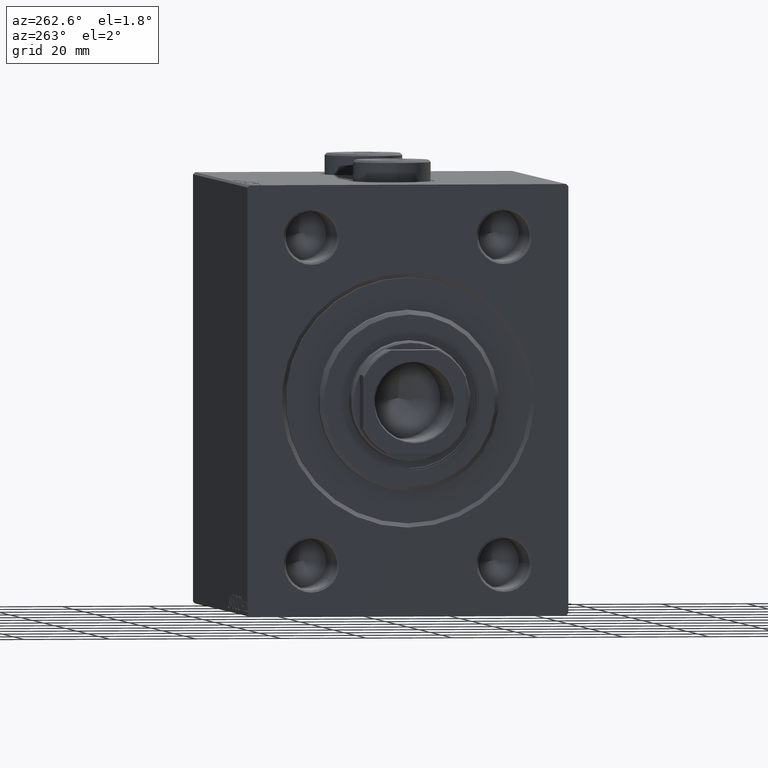
[diagram: clean part render]
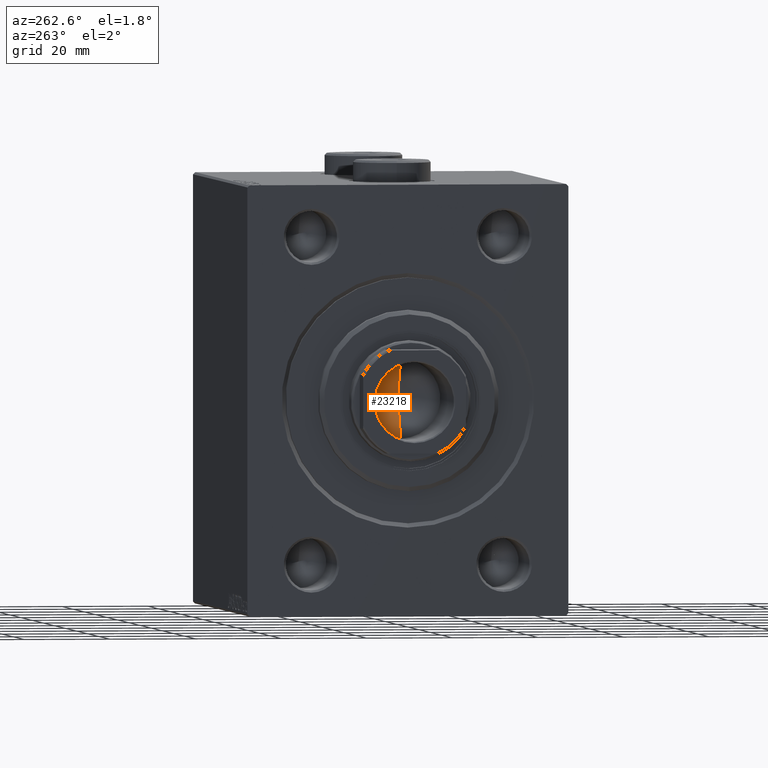
[diagram: same view with one face highlighted and labeled with its STEP entity id]
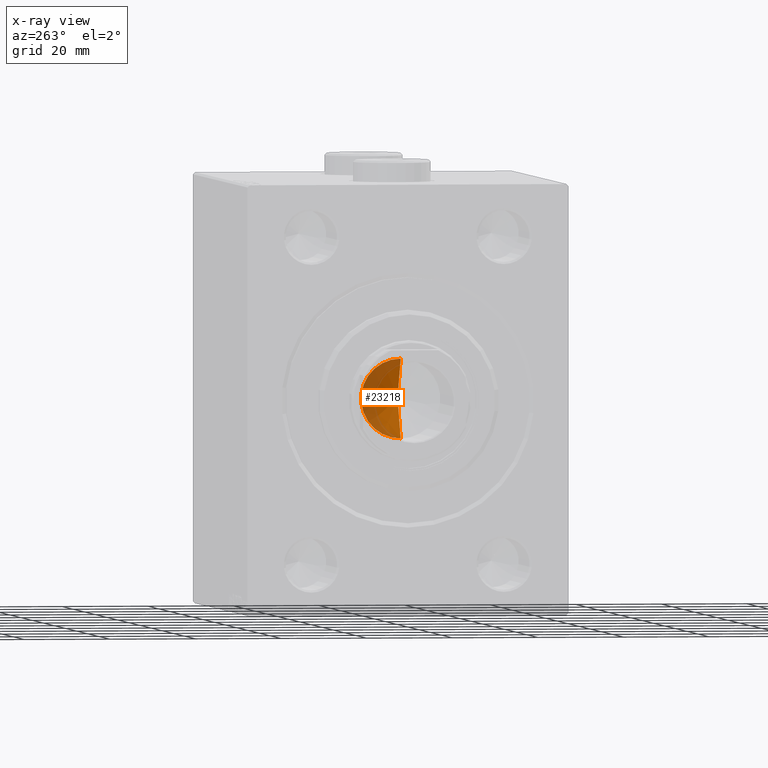
[diagram: x-ray of the same camera — body ghosted, the highlighted face saturated]
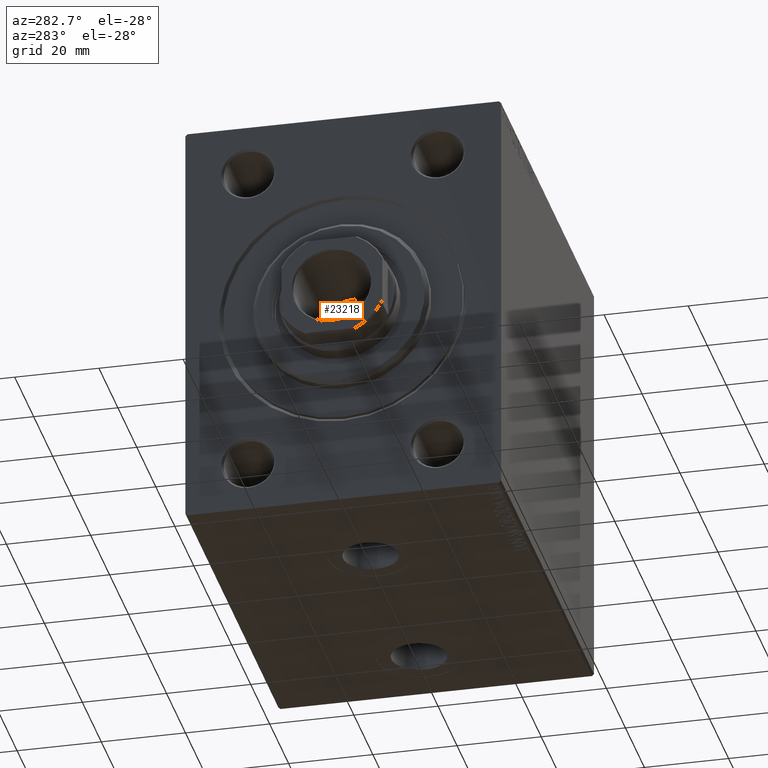
[diagram: same view with one face highlighted and labeled with its STEP entity id]
A machine part, auxiliary view. The second image highlights one B-rep face of the part: STEP entity #23218.
The next image is the same camera in x-ray: the body ghosted, the highlighted face saturated — about 46% of this face is hidden behind the body in this view.
A second angle (auxiliary view) of the same face is appended — the face is thin or edge-on in the first view.
In plain terms, the highlighted conical surface has half-angle 59 deg.
Its self-contained STEP definition (entity closure, byte-faithful):
#236 = DIRECTION ( 'NONE',  ( 0.8571673007021113344, 0.000000000000000000, 0.5150380749100558209 ) ) ;
#1900 = AXIS2_PLACEMENT_3D ( 'NONE', #41299, #3392, #16793 ) ;
#3076 = ORIENTED_EDGE ( 'NONE', *, *, #28513, .T. ) ;
#3392 = DIRECTION ( 'NONE',  ( -0.000000000000000000, -0.000000000000000000, 1.000000000000000000 ) ) ;
#5987 = CARTESIAN_POINT ( 'NONE',  ( 9.249999999999994671, 0.000000000000000000, 71.00000000000001421 ) ) ;
#7689 = VERTEX_POINT ( 'NONE', #19281 ) ;
#7812 = VECTOR ( 'NONE', #236, 1000.000000000000000 ) ;
#8338 = CARTESIAN_POINT ( 'NONE',  ( -9.249999999999994671, 1.132798289211300909E-15, 71.00000000000001421 ) ) ;
#8561 = DIRECTION ( 'NONE',  ( -0.8571673007021113344, 1.049727191138617463E-16, 0.5150380749100558209 ) ) ;
#13098 = CIRCLE ( 'NONE', #27873, 9.249999999999994671 ) ;
#14109 = LINE ( 'NONE', #42309, #7812 ) ;
#16793 = DIRECTION ( 'NONE',  ( 1.000000000000000000, 0.000000000000000000, 0.000000000000000000 ) ) ;
#19281 = CARTESIAN_POINT ( 'NONE',  ( -6.793016015247754405E-15, 0.000000000000000000, 65.44203927399505005 ) ) ;
#19991 = VERTEX_POINT ( 'NONE', #25605 ) ;
#20606 = DIRECTION ( 'NONE',  ( -0.000000000000000000, -0.000000000000000000, 1.000000000000000000 ) ) ;
#21064 = DIRECTION ( 'NONE',  ( 1.000000000000000000, 0.000000000000000000, 0.000000000000000000 ) ) ;
#23218 = ADVANCED_FACE ( 'NONE', ( #45431 ), #40274, .F. ) ;
#23846 = CARTESIAN_POINT ( 'NONE',  ( 0.000000000000000000, 0.000000000000000000, 71.00000000000001421 ) ) ;
#25605 = CARTESIAN_POINT ( 'NONE',  ( -9.249999999999994671, 1.132798289211300909E-15, 71.00000000000001421 ) ) ;
#25699 = EDGE_LOOP ( 'NONE', ( #32170, #3076, #27899 ) ) ;
#27873 = AXIS2_PLACEMENT_3D ( 'NONE', #23846, #20606, #21064 ) ;
#27899 = ORIENTED_EDGE ( 'NONE', *, *, #32167, .T. ) ;
#28513 = EDGE_CURVE ( 'NONE', #7689, #44625, #14109, .T. ) ;
#32167 = EDGE_CURVE ( 'NONE', #44625, #19991, #13098, .T. ) ;
#32170 = ORIENTED_EDGE ( 'NONE', *, *, #35934, .F. ) ;
#35934 = EDGE_CURVE ( 'NONE', #7689, #19991, #39999, .T. ) ;
#38327 = VECTOR ( 'NONE', #8561, 1000.000000000000000 ) ;
#39999 = LINE ( 'NONE', #8338, #38327 ) ;
#40274 = CONICAL_SURFACE ( 'NONE', #1900, 9.249999999999994671, 1.029744258676652535 ) ;
#41299 = CARTESIAN_POINT ( 'NONE',  ( 0.000000000000000000, 0.000000000000000000, 71.00000000000001421 ) ) ;
#42309 = CARTESIAN_POINT ( 'NONE',  ( 9.249999999999994671, 0.000000000000000000, 71.00000000000001421 ) ) ;
#44625 = VERTEX_POINT ( 'NONE', #5987 ) ;
#45431 = FACE_OUTER_BOUND ( 'NONE', #25699, .T. ) ;